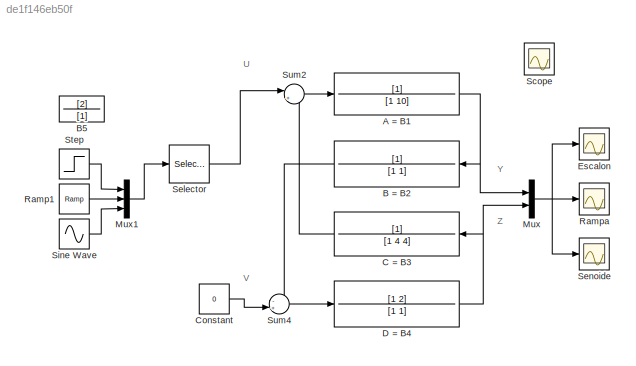
MODEL slx_de1f146eb50f
KIND model
CONFIG AbsTol = auto
CONFIG EnableMultiTasking = off
CONFIG FixedStep = auto
CONFIG MaxStep = auto
CONFIG MinStep = auto
CONFIG RelTol = 1e-3
CONFIG SampleTimeConstraint = Unconstrained
CONFIG SolverName = VariableStepAuto
CONFIG StartTime = 0.0
CONFIG StopTime = 100
BLOCK [TransferFcn] A = B1
  Denominator = [1 10]
BLOCK [TransferFcn] B = B2
  Denominator = [1 1]
BLOCK [TransferFcn] B5
  Commented = on
  Denominator = [1]
  NameLocation = top
  Numerator = [2]
BLOCK [TransferFcn] C = B3
  Denominator = [1 4 4]
BLOCK [Constant] Constant
  Value = 0
BLOCK [TransferFcn] D = B4
  Denominator = [1 1]
  Numerator = [1 2]
BLOCK [Scope] Escalon
  ActiveDisplayYMaximum = 2.2
  ActiveDisplayYMinimum = -0.2
  ContainerLayout = {"WindowBounds":[1280,1363,639,765]}
  DataLoggingVariableName = ScopeData3
  Floating = off
  GraphicalSettings = {"Style":{"BackgroundColor":[0.12941176470588237,0.12941176470588237,0.12941176470588237],"AxesColor":[0,0,0],"LabelsColor":[0.8509803921568627,0.8509803921568627,0.8509803921568627],"PreserveColors":false,"Visible":[true,true],"LineStyle":["-","-"],"LineWidth":[1.5,1.5],"BarWidth":[0.9,0.9],"LineColor":["auto","auto"],"LineFaceAlpha":[1,1],"LineEdgeAlpha":[1,1],"Marker":["none","none"],"FontSize"...<+1965ch>
  MultipleDisplayCache = [{"MaxYLimMag":12.5,"MaxYLimReal":2.2,"MinYLimMag":0,"MinYLimReal":-0.2,"PlotAsMagnitudePhase":false,"ShowGrid":true,"ShowLegend":true,"Title":"%<SignalLabel>","YLabel":""}]
  NumInputPorts = 1
  ShowLegend = on
  TimeSpan = 100
  TimeUnits = Seconds
  Visible = on
  WasSavedAsWebScope = on
  WindowPosition = [1280.000000,114.000000,641.000000,768.000000,]
BLOCK [Mux] Mux
  DisplayOption = bar
  Inputs = 2
BLOCK [Mux] Mux1
  DisplayOption = bar
  Inputs = 3
BLOCK [Reference] Ramp1  REF=simulink/Sources/Ramp
  SourceBlock = simulink/Sources/Ramp
  SourceType = Ramp
BLOCK [Scope] Rampa
  ActiveDisplayYMaximum = 0.2
  ActiveDisplayYMinimum = -0.29997
  ContainerLayout = {"WindowBounds":[1,1250,1918,878]}
  DataLoggingVariableName = ScopeData1
  Floating = off
  GraphicalSettings = {"AxesScalingProperties":{"AlignXAxis":"Right","AlignYAxis":"Bottom","AutoScaleXAxisLimits":false,"AxesScaling":"Manual","AxesScalingNumUpdates":10,"ExpandOnly":true,"ScaleAxesLimitsAtStop":false,"XAxisDataRange":100,"YAxisDataRange":80},"DisplayProperties":{"ColorOrder":["auto","auto","auto","auto","auto","auto","auto","auto","auto","auto","auto","auto","auto","auto","auto","auto","auto","auto","...<+2029ch>
  MultipleDisplayCache = [{"MaxYLimMag":12.5,"MaxYLimReal":0.2,"MinYLimMag":0,"MinYLimReal":-0.29997,"PlotAsMagnitudePhase":false,"ShowGrid":true,"ShowLegend":true,"Title":"%<SignalLabel>","YLabel":""}]
  NumInputPorts = 1
  ShowLegend = on
  TimeSpan = 100
  TimeUnits = Seconds
  Visible = on
  WasSavedAsWebScope = on
  WindowPosition = [2034 149 1536 741]
BLOCK [Scope] Scope
  ActiveDisplayYMaximum = 13.90038
  ActiveDisplayYMinimum = -7.96675
  Floating = off
  GraphicalSettings = {"GraphicalSettings":{"LegacySettings":true,"Style":{"Style":{"AxesColor":"[0 0 0]","ChannelNames":[""],"ColorOrder":"[1 0.909803921568627 0.392156862745098;0.149019607843137 0.549019607843137 0.866666666666667;0.96078431372549 0.466666666666667 0.16078431372549;0.286274509803922 0.858823529411765 0.250980392156863;0.752941176470588 0.36078431372549 0.984313725490196;0.423529411764706 0.9568627450...<+432ch>
  IOType = viewer
  MultipleDisplayCache = [{"MaxYLimMag":13.90038,"MaxYLimReal":13.90038,"MinYLimMag":0,"MinYLimReal":-7.96675,"PlotAsMagnitudePhase":false,"ShowGrid":true,"ShowLegend":false,"Title":"%<SignalLabel>","YLabel":""}]
  NumInputPorts = 1
  WasSavedAsWebScope = on
BLOCK [Selector] Selector
  IndexOptions = Index vector (dialog)
  Indices = 1
  InputPortWidth = 3
  OutputSizes = 1
BLOCK [Scope] Senoide
  ActiveDisplayYMaximum = 1.5
  ActiveDisplayYMinimum = -1.5
  ContainerLayout = {"WindowBounds":[1,1253,1916,875],"gridDimensions":{"w":1,"h":1},"tileCount":1,"tileCoverage":1,"columnWeights":1,"rowWeights":1,"tileOccupancy":{"children":[{"id":"/Rampa"},{"id":"/Escalon"},{"id":"/Senoide"}]}}
  DataLoggingVariableName = ScopeData2
  Floating = off
  GraphicalSettings = {"Style":{"BackgroundColor":[0.12941176470588237,0.12941176470588237,0.12941176470588237],"AxesColor":[0,0,0],"LabelsColor":[0.8509803921568627,0.8509803921568627,0.8509803921568627],"PreserveColors":false,"Visible":[true,true],"LineStyle":["-","-"],"LineWidth":[1.5,1.5],"BarWidth":[0.9,0.9],"LineColor":["auto","auto"],"LineFaceAlpha":[1,1],"LineEdgeAlpha":[1,1],"Marker":["none","none"],"FontSize"...<+1972ch>
  MultipleDisplayCache = [{"MaxYLimMag":12.5,"MaxYLimReal":1.5,"MinYLimMag":0,"MinYLimReal":-1.5,"PlotAsMagnitudePhase":false,"ShowGrid":true,"ShowLegend":true,"Title":"%<SignalLabel>","YLabel":""}]
  NumInputPorts = 1
  ShowLegend = on
  TimeSpan = 100
  TimeUnits = Seconds
  Visible = on
  WasSavedAsWebScope = on
  WindowPosition = [2034 149 1536 741]
BLOCK [Sin] Sine Wave
  SampleTime = 0
BLOCK [Step] Step
  SampleTime = 0
BLOCK [Sum] Sum2
  Inputs = |+-
BLOCK [Sum] Sum4
  Inputs = -+|
ANNOTATION (root): U
ANNOTATION (root): V
ANNOTATION (root): Y
ANNOTATION (root): Z
NET A = B1:1 -> B = B2:1, Mux:1
LINE B = B2:1 -> Sum4:1
LINE C = B3:1 -> Sum2:2
LINE Constant:1 -> Sum4:2
NET D = B4:1 -> C = B3:1, Mux:2
LINE Mux1:1 -> Selector:1
NET Mux:1 -> Escalon:1, Rampa:1, Senoide:1
LINE Ramp1:1 -> Mux1:2
LINE Selector:1 -> Sum2:1
LINE Sine Wave:1 -> Mux1:3
LINE Step:1 -> Mux1:1
LINE Sum2:1 -> A = B1:1
LINE Sum4:1 -> D = B4:1
note: NET lines group one-source signal fan-out (src -> all destinations, sorted); 1:1 wires keep LINE
